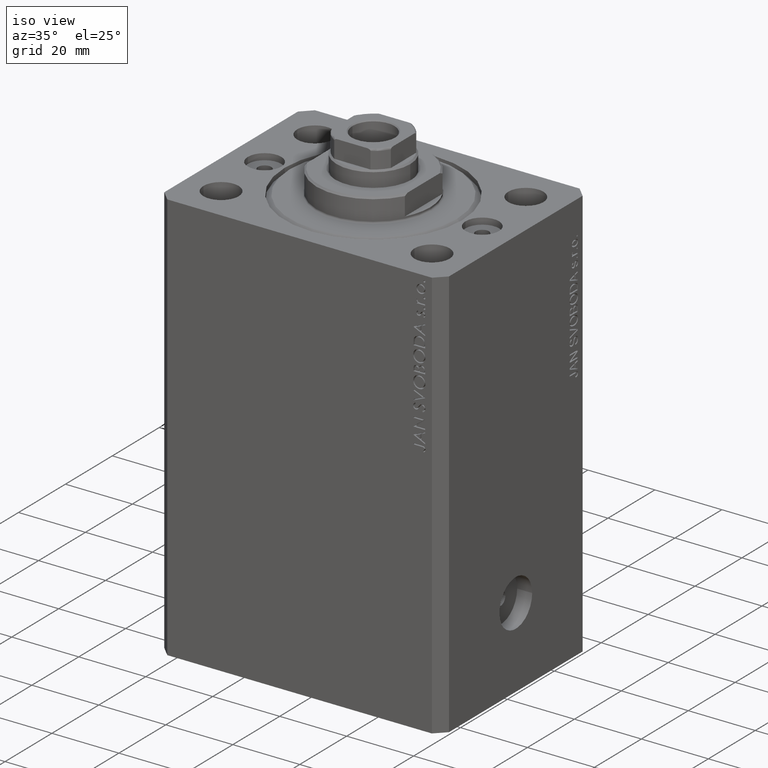
[diagram: clean part render]
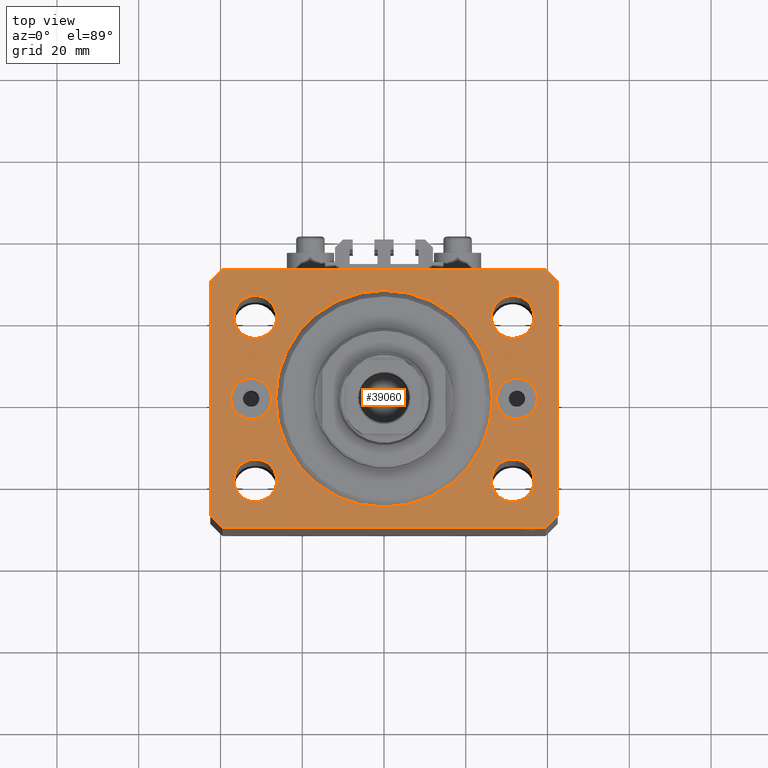
[diagram: tour spotlight — one face highlighted and labeled with its STEP entity id]
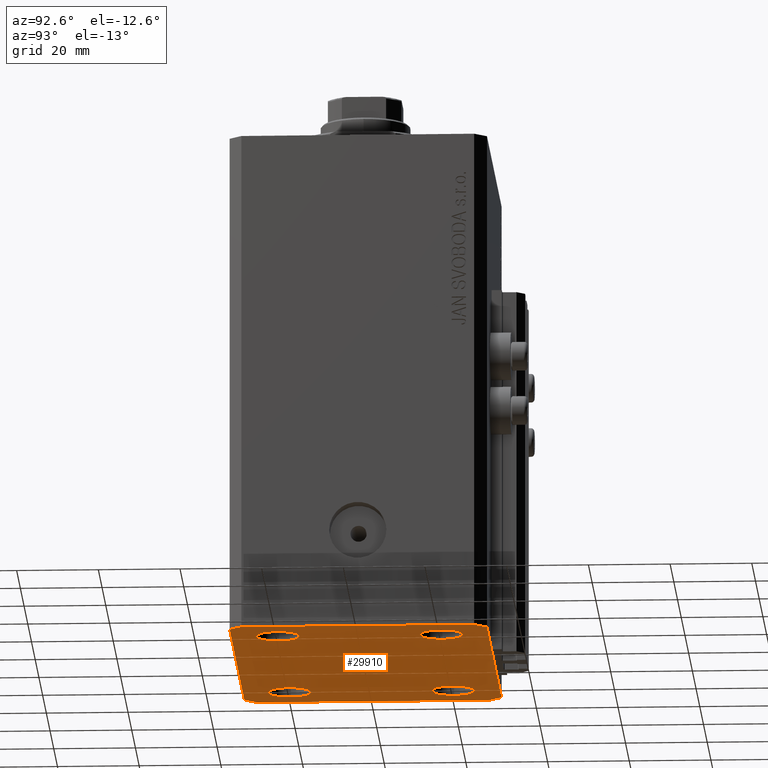
[diagram: tour spotlight — one face highlighted and labeled with its STEP entity id]
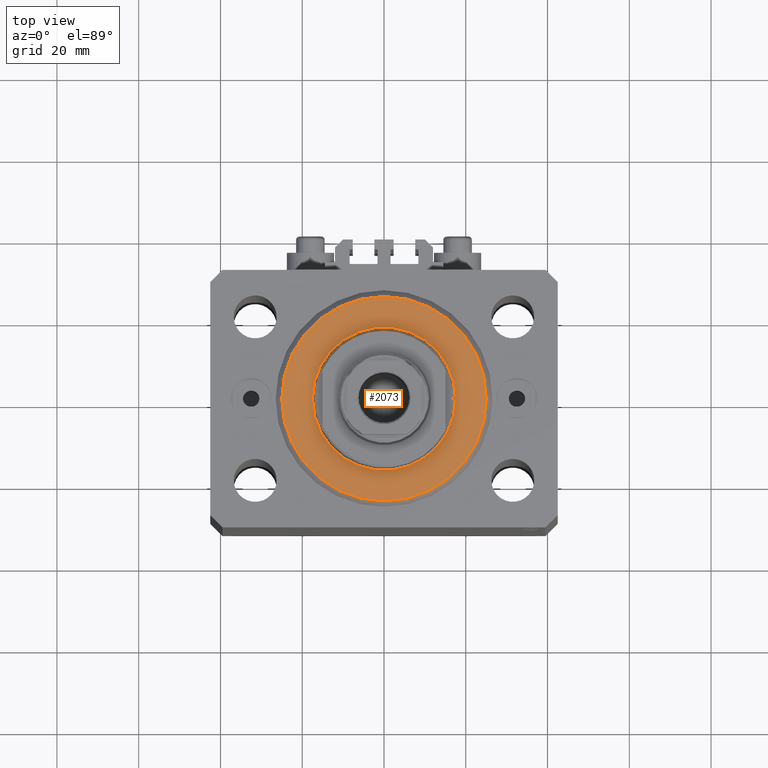
[diagram: tour spotlight — one face highlighted and labeled with its STEP entity id]
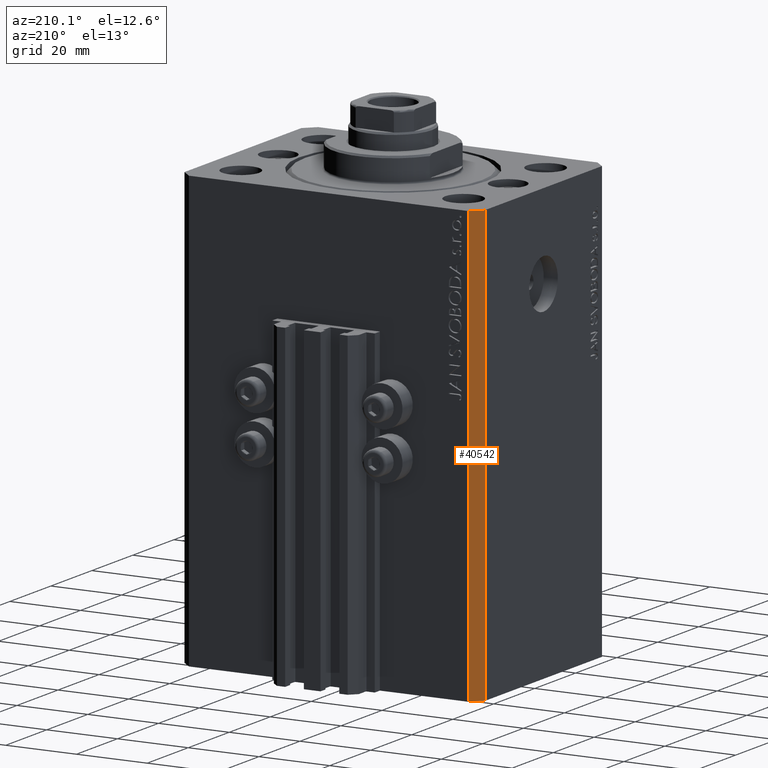
[diagram: tour spotlight — one face highlighted and labeled with its STEP entity id]
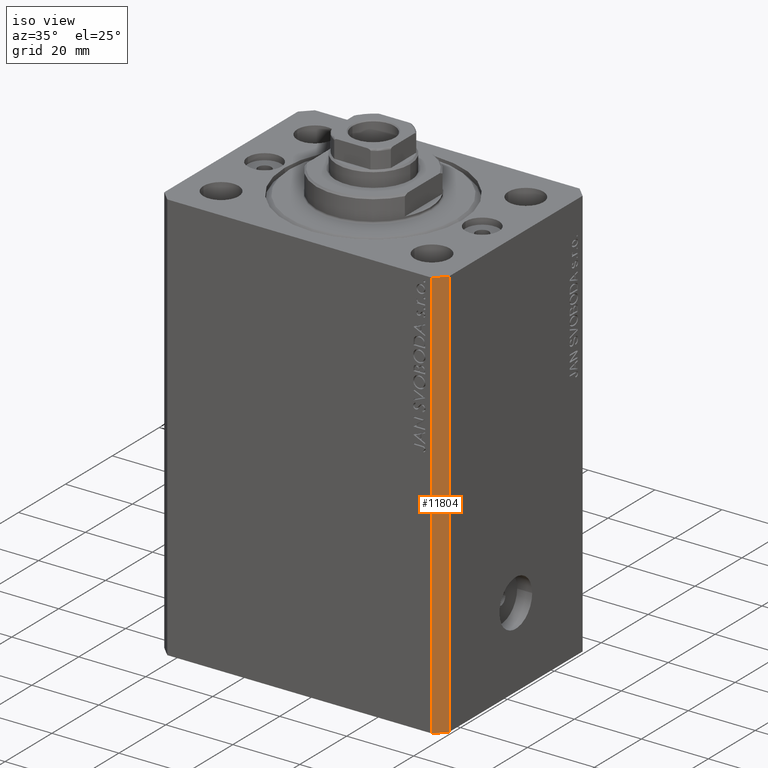
[diagram: tour spotlight — one face highlighted and labeled with its STEP entity id]
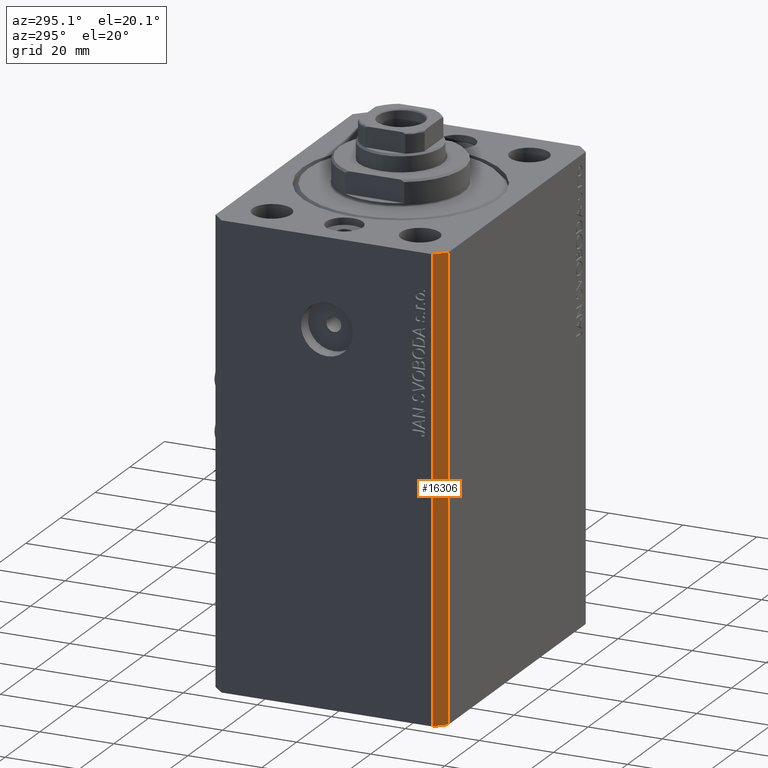
[diagram: tour spotlight — one face highlighted and labeled with its STEP entity id]
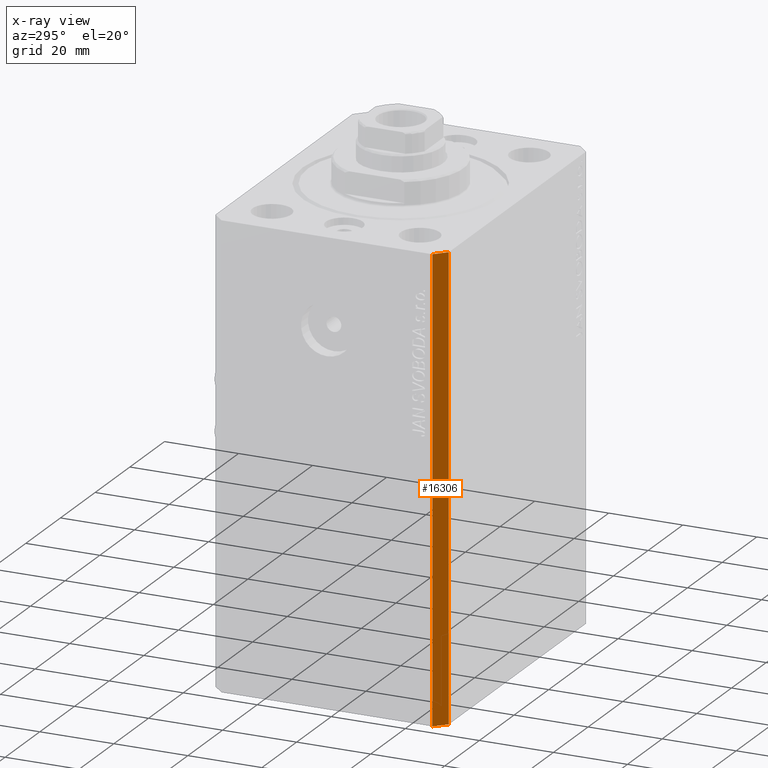
[diagram: x-ray of the same camera — body ghosted, this tour face saturated]
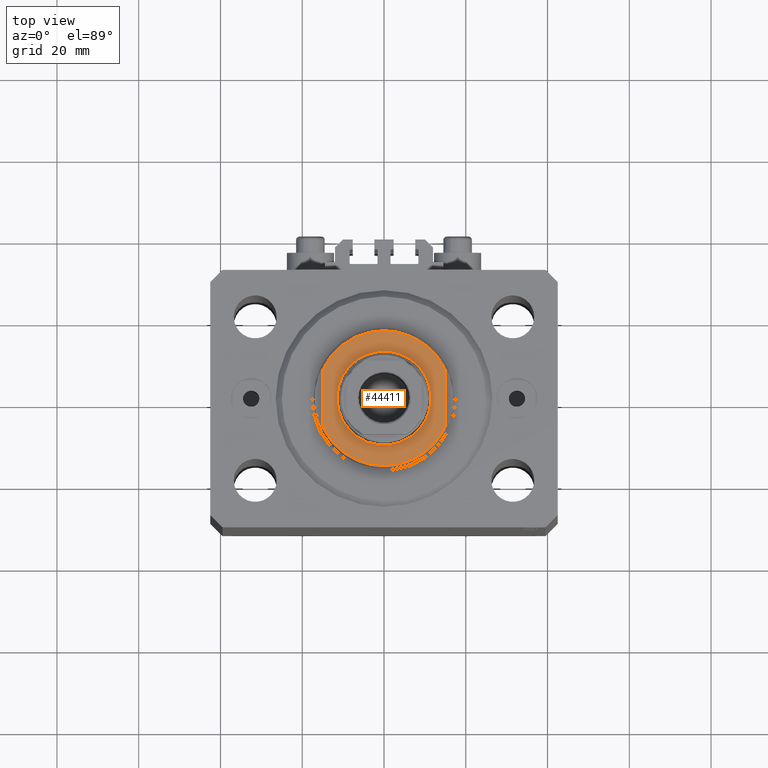
[diagram: tour spotlight — one face highlighted and labeled with its STEP entity id]
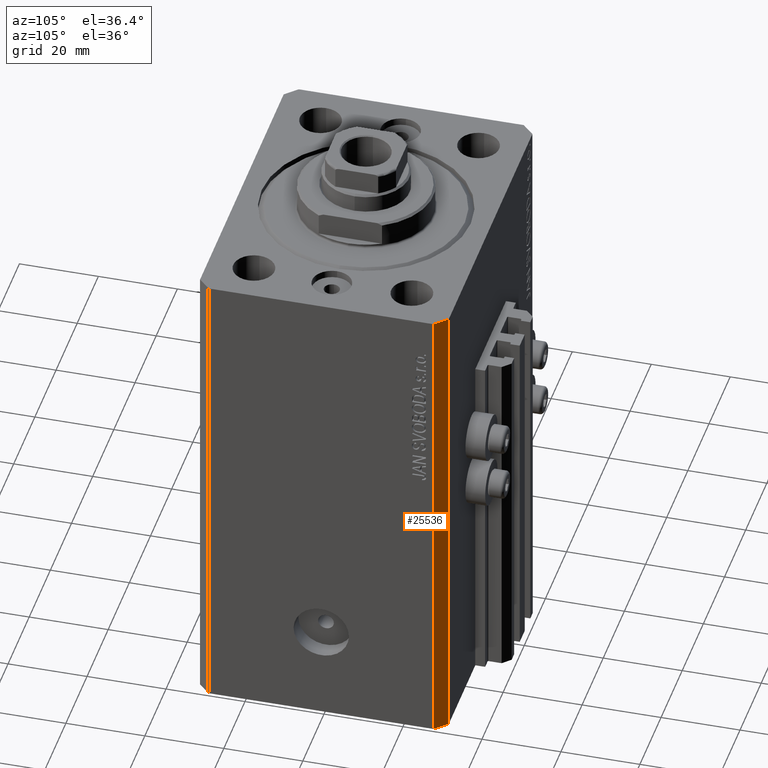
[diagram: tour spotlight — one face highlighted and labeled with its STEP entity id]
A machine part: a face-by-face anatomy tour. The part has 1034 B-rep faces; the first image is the clean iso view, then the 8 largest visible faces are spotlighted one at a time (largest first), each with its STEP entity span.

Face 1 — top view, entity #39060. In plain terms, the highlighted planar face has unit normal (0, 0, 1).
Definition (entity closure, byte-faithful):
#320 = FACE_BOUND ( 'NONE', #38088, .T. ) ;
#492 = DIRECTION ( 'NONE',  ( 0.000000000000000000, 0.000000000000000000, 1.000000000000000000 ) ) ;
#544 = CIRCLE ( 'NONE', #4364, 5.250000000000000888 ) ;
#616 = AXIS2_PLACEMENT_3D ( 'NONE', #32917, #46763, #10721 ) ;
#768 = ORIENTED_EDGE ( 'NONE', *, *, #45576, .F. ) ;
#1257 = LINE ( 'NONE', #33502, #16091 ) ;
#1349 = ORIENTED_EDGE ( 'NONE', *, *, #29163, .F. ) ;
#1533 = EDGE_CURVE ( 'NONE', #11230, #44700, #39549, .T. ) ;
#1689 = AXIS2_PLACEMENT_3D ( 'NONE', #26861, #9167, #20143 ) ;
#2320 = DIRECTION ( 'NONE',  ( 1.000000000000000000, 0.000000000000000000, 0.000000000000000000 ) ) ;
#2608 = CARTESIAN_POINT ( 'NONE',  ( 36.75000000000000000, 19.99999999999999289, 0.000000000000000000 ) ) ;
#2631 = VERTEX_POINT ( 'NONE', #34770 ) ;
#3050 = ORIENTED_EDGE ( 'NONE', *, *, #7597, .F. ) ;
#3194 = PLANE ( 'NONE',  #29833 ) ;
#3853 = DIRECTION ( 'NONE',  ( 1.000000000000000000, 0.000000000000000000, 0.000000000000000000 ) ) ;
#3963 = CARTESIAN_POINT ( 'NONE',  ( -31.49999999999999289, -20.00000000000000355, 0.000000000000000000 ) ) ;
#4119 = VERTEX_POINT ( 'NONE', #32526 ) ;
#4364 = AXIS2_PLACEMENT_3D ( 'NONE', #30347, #40866, #23177 ) ;
#4549 = DIRECTION ( 'NONE',  ( 0.000000000000000000, -0.000000000000000000, -1.000000000000000000 ) ) ;
#4561 = DIRECTION ( 'NONE',  ( 0.000000000000000000, 0.000000000000000000, 1.000000000000000000 ) ) ;
#4680 = EDGE_CURVE ( 'NONE', #17376, #24225, #30666, .T. ) ;
#4955 = CARTESIAN_POINT ( 'NONE',  ( -26.50000000000000355, 3.245314017740486554E-15, 0.000000000000000000 ) ) ;
#5402 = AXIS2_PLACEMENT_3D ( 'NONE', #33445, #4549, #3853 ) ;
#5435 = ORIENTED_EDGE ( 'NONE', *, *, #39119, .T. ) ;
#5450 = CARTESIAN_POINT ( 'NONE',  ( -26.24999999999999289, -20.00000000000000355, 0.000000000000000000 ) ) ;
#5735 = VECTOR ( 'NONE', #37131, 1000.000000000000000 ) ;
#5882 = CARTESIAN_POINT ( 'NONE',  ( -39.50000000000000711, -31.50000000000000000, 0.000000000000000000 ) ) ;
#5899 = DIRECTION ( 'NONE',  ( 0.000000000000000000, -0.000000000000000000, -1.000000000000000000 ) ) ;
#6372 = ORIENTED_EDGE ( 'NONE', *, *, #25056, .F. ) ;
#6502 = VECTOR ( 'NONE', #12837, 1000.000000000000000 ) ;
#6548 = DIRECTION ( 'NONE',  ( 0.000000000000000000, -1.000000000000000000, 0.000000000000000000 ) ) ;
#7340 = CIRCLE ( 'NONE', #27163, 5.249999999999997335 ) ;
#7597 = EDGE_CURVE ( 'NONE', #30133, #4119, #15321, .T. ) ;
#7707 = CARTESIAN_POINT ( 'NONE',  ( 27.50000000000000355, 6.123233995736762338E-16, 0.000000000000000000 ) ) ;
#8119 = VERTEX_POINT ( 'NONE', #9932 ) ;
#8397 = DIRECTION ( 'NONE',  ( 1.000000000000000000, 0.000000000000000000, 0.000000000000000000 ) ) ;
#8476 = DIRECTION ( 'NONE',  ( 0.000000000000000000, 0.000000000000000000, 1.000000000000000000 ) ) ;
#8890 = AXIS2_PLACEMENT_3D ( 'NONE', #46009, #5899, #2320 ) ;
#8935 = DIRECTION ( 'NONE',  ( -0.7071067811865471286, -0.7071067811865479058, 0.000000000000000000 ) ) ;
#9167 = DIRECTION ( 'NONE',  ( 0.000000000000000000, 0.000000000000000000, 1.000000000000000000 ) ) ;
#9320 = CIRCLE ( 'NONE', #16188, 5.250000000000000888 ) ;
#9932 = CARTESIAN_POINT ( 'NONE',  ( -39.50000000000000711, -31.50000000000000000, 0.000000000000000000 ) ) ;
#9972 = VERTEX_POINT ( 'NONE', #13715 ) ;
#9998 = LINE ( 'NONE', #36267, #25668 ) ;
#10031 = EDGE_CURVE ( 'NONE', #24225, #31808, #25185, .T. ) ;
#10114 = FACE_OUTER_BOUND ( 'NONE', #44625, .T. ) ;
#10307 = CARTESIAN_POINT ( 'NONE',  ( -42.50000000000000000, -28.50000000000000000, 0.000000000000000000 ) ) ;
#10352 = CARTESIAN_POINT ( 'NONE',  ( 0.000000000000000000, 0.000000000000000000, 0.000000000000000000 ) ) ;
#10599 = DIRECTION ( 'NONE',  ( 1.000000000000000000, 0.000000000000000000, -0.000000000000000000 ) ) ;
#10721 = DIRECTION ( 'NONE',  ( 1.000000000000000000, 0.000000000000000000, 0.000000000000000000 ) ) ;
#10752 = VERTEX_POINT ( 'NONE', #17616 ) ;
#10865 = ORIENTED_EDGE ( 'NONE', *, *, #11134, .F. ) ;
#10981 = CARTESIAN_POINT ( 'NONE',  ( 37.50000000000000000, 0.000000000000000000, 0.000000000000000000 ) ) ;
#10985 = ORIENTED_EDGE ( 'NONE', *, *, #22318, .T. ) ;
#11120 = AXIS2_PLACEMENT_3D ( 'NONE', #32044, #29416, #21793 ) ;
#11134 = EDGE_CURVE ( 'NONE', #10752, #12616, #46647, .T. ) ;
#11182 = CARTESIAN_POINT ( 'NONE',  ( 39.50000000000000711, -31.50000000000000000, 0.000000000000000000 ) ) ;
#11191 = VECTOR ( 'NONE', #19688, 1000.000000000000000 ) ;
#11212 = ORIENTED_EDGE ( 'NONE', *, *, #10031, .T. ) ;
#11230 = VERTEX_POINT ( 'NONE', #22335 ) ;
#11817 = LINE ( 'NONE', #26849, #5735 ) ;
#12080 = CIRCLE ( 'NONE', #46339, 5.249999999999997335 ) ;
#12274 = AXIS2_PLACEMENT_3D ( 'NONE', #33440, #492, #22928 ) ;
#12462 = VERTEX_POINT ( 'NONE', #7707 ) ;
#12464 = DIRECTION ( 'NONE',  ( 0.000000000000000000, 0.000000000000000000, 1.000000000000000000 ) ) ;
#12609 = VERTEX_POINT ( 'NONE', #10981 ) ;
#12616 = VERTEX_POINT ( 'NONE', #2608 ) ;
#12837 = DIRECTION ( 'NONE',  ( 1.000000000000000000, 0.000000000000000000, 0.000000000000000000 ) ) ;
#13715 = CARTESIAN_POINT ( 'NONE',  ( 42.50000000000051870, 28.49999999999995381, 0.000000000000000000 ) ) ;
#13867 = CARTESIAN_POINT ( 'NONE',  ( -42.50000000000000000, 28.50000000000000000, 0.000000000000000000 ) ) ;
#13971 = ORIENTED_EDGE ( 'NONE', *, *, #44407, .T. ) ;
#14632 = ORIENTED_EDGE ( 'NONE', *, *, #45518, .F. ) ;
#14892 = FACE_BOUND ( 'NONE', #34574, .T. ) ;
#15321 = CIRCLE ( 'NONE', #12274, 26.50000000000000355 ) ;
#15575 = CARTESIAN_POINT ( 'NONE',  ( -32.50000000000000000, 0.000000000000000000, 0.000000000000000000 ) ) ;
#15902 = EDGE_CURVE ( 'NONE', #35502, #27976, #9320, .T. ) ;
#15987 = EDGE_CURVE ( 'NONE', #4119, #30133, #42860, .T. ) ;
#16091 = VECTOR ( 'NONE', #22990, 1000.000000000000000 ) ;
#16188 = AXIS2_PLACEMENT_3D ( 'NONE', #3963, #8476, #23040 ) ;
#17272 = CIRCLE ( 'NONE', #8890, 4.999999999999997335 ) ;
#17376 = VERTEX_POINT ( 'NONE', #46772 ) ;
#17519 = DIRECTION ( 'NONE',  ( 0.000000000000000000, 0.000000000000000000, 1.000000000000000000 ) ) ;
#17616 = CARTESIAN_POINT ( 'NONE',  ( 26.25000000000000355, 19.99999999999999289, 0.000000000000000000 ) ) ;
#18007 = AXIS2_PLACEMENT_3D ( 'NONE', #36964, #36504, #21943 ) ;
#18115 = CARTESIAN_POINT ( 'NONE',  ( 42.50000000000000711, -28.50000000000000355, 0.000000000000000000 ) ) ;
#18346 = ORIENTED_EDGE ( 'NONE', *, *, #31962, .T. ) ;
#18855 = VERTEX_POINT ( 'NONE', #35417 ) ;
#19132 = DIRECTION ( 'NONE',  ( 1.000000000000000000, 0.000000000000000000, 0.000000000000000000 ) ) ;
#19189 = CARTESIAN_POINT ( 'NONE',  ( -26.25000000000000000, 19.99999999999999645, 0.000000000000000000 ) ) ;
#19476 = ORIENTED_EDGE ( 'NONE', *, *, #25921, .T. ) ;
#19688 = DIRECTION ( 'NONE',  ( 0.7071067811865471286, -0.7071067811865479058, 0.000000000000000000 ) ) ;
#20143 = DIRECTION ( 'NONE',  ( 1.000000000000000000, 0.000000000000000000, 0.000000000000000000 ) ) ;
#20474 = AXIS2_PLACEMENT_3D ( 'NONE', #15575, #41117, #8397 ) ;
#21124 = DIRECTION ( 'NONE',  ( 0.000000000000000000, 0.000000000000000000, 1.000000000000000000 ) ) ;
#21468 = DIRECTION ( 'NONE',  ( -0.7071067811865356934, 0.7071067811865594521, 0.000000000000000000 ) ) ;
#21793 = DIRECTION ( 'NONE',  ( 1.000000000000000000, 0.000000000000000000, 0.000000000000000000 ) ) ;
#21864 = VERTEX_POINT ( 'NONE', #11182 ) ;
#21943 = DIRECTION ( 'NONE',  ( 1.000000000000000000, 0.000000000000000000, 0.000000000000000000 ) ) ;
#22318 = EDGE_CURVE ( 'NONE', #31808, #8119, #31362, .T. ) ;
#22335 = CARTESIAN_POINT ( 'NONE',  ( -37.50000000000000000, 6.123233995736768255E-16, 0.000000000000000000 ) ) ;
#22717 = CARTESIAN_POINT ( 'NONE',  ( 31.49999999999999289, -20.00000000000000355, 0.000000000000000000 ) ) ;
#22928 = DIRECTION ( 'NONE',  ( 1.000000000000000000, 0.000000000000000000, 0.000000000000000000 ) ) ;
#22990 = DIRECTION ( 'NONE',  ( -1.000000000000000000, 0.000000000000000000, 0.000000000000000000 ) ) ;
#23040 = DIRECTION ( 'NONE',  ( 1.000000000000000000, 0.000000000000000000, 0.000000000000000000 ) ) ;
#23154 = EDGE_CURVE ( 'NONE', #18855, #31517, #29418, .T. ) ;
#23177 = DIRECTION ( 'NONE',  ( 1.000000000000000000, 0.000000000000000000, 0.000000000000000000 ) ) ;
#23403 = DIRECTION ( 'NONE',  ( 8.886653596232072440E-15, 1.000000000000000000, 0.000000000000000000 ) ) ;
#23426 = CARTESIAN_POINT ( 'NONE',  ( 39.50000000000056843, 31.50000000000000000, 0.000000000000000000 ) ) ;
#23720 = EDGE_CURVE ( 'NONE', #21864, #24584, #11817, .T. ) ;
#23996 = ORIENTED_EDGE ( 'NONE', *, *, #23154, .F. ) ;
#24090 = DIRECTION ( 'NONE',  ( 1.000000000000000000, 0.000000000000000000, 0.000000000000000000 ) ) ;
#24225 = VERTEX_POINT ( 'NONE', #13867 ) ;
#24464 = DIRECTION ( 'NONE',  ( 1.000000000000000000, 0.000000000000000000, 0.000000000000000000 ) ) ;
#24584 = VERTEX_POINT ( 'NONE', #18115 ) ;
#24673 = FACE_BOUND ( 'NONE', #37695, .T. ) ;
#24867 = CIRCLE ( 'NONE', #18007, 5.250000000000000888 ) ;
#25056 = EDGE_CURVE ( 'NONE', #43396, #2631, #7340, .T. ) ;
#25185 = LINE ( 'NONE', #27799, #27561 ) ;
#25668 = VECTOR ( 'NONE', #21468, 1000.000000000000114 ) ;
#25921 = EDGE_CURVE ( 'NONE', #12609, #12462, #17272, .T. ) ;
#26422 = VERTEX_POINT ( 'NONE', #23426 ) ;
#26627 = CARTESIAN_POINT ( 'NONE',  ( -39.50000000000000711, 31.50000000000000000, 0.000000000000000000 ) ) ;
#26849 = CARTESIAN_POINT ( 'NONE',  ( 39.50000000000000711, -31.50000000000000000, 0.000000000000000000 ) ) ;
#26861 = CARTESIAN_POINT ( 'NONE',  ( 0.000000000000000000, 0.000000000000000000, 0.000000000000000000 ) ) ;
#27163 = AXIS2_PLACEMENT_3D ( 'NONE', #29911, #12464, #37316 ) ;
#27561 = VECTOR ( 'NONE', #6548, 1000.000000000000000 ) ;
#27799 = CARTESIAN_POINT ( 'NONE',  ( -42.50000000000000000, 28.50000000000000000, 0.000000000000000000 ) ) ;
#27976 = VERTEX_POINT ( 'NONE', #43587 ) ;
#28283 = ORIENTED_EDGE ( 'NONE', *, *, #4680, .T. ) ;
#28739 = FACE_BOUND ( 'NONE', #35497, .T. ) ;
#29068 = EDGE_LOOP ( 'NONE', ( #6372, #768 ) ) ;
#29163 = EDGE_CURVE ( 'NONE', #44700, #11230, #41786, .T. ) ;
#29416 = DIRECTION ( 'NONE',  ( 0.000000000000000000, 0.000000000000000000, 1.000000000000000000 ) ) ;
#29418 = CIRCLE ( 'NONE', #11120, 5.250000000000000888 ) ;
#29833 = AXIS2_PLACEMENT_3D ( 'NONE', #10352, #17519, #10599 ) ;
#29911 = CARTESIAN_POINT ( 'NONE',  ( 31.49999999999999289, -20.00000000000000355, 0.000000000000000000 ) ) ;
#30133 = VERTEX_POINT ( 'NONE', #4955 ) ;
#30319 = EDGE_CURVE ( 'NONE', #8119, #21864, #34780, .T. ) ;
#30347 = CARTESIAN_POINT ( 'NONE',  ( -31.50000000000000000, 19.99999999999999645, 0.000000000000000000 ) ) ;
#30666 = LINE ( 'NONE', #26627, #43460 ) ;
#30761 = ORIENTED_EDGE ( 'NONE', *, *, #1533, .F. ) ;
#30789 = CARTESIAN_POINT ( 'NONE',  ( 31.50000000000000000, 19.99999999999999289, 0.000000000000000000 ) ) ;
#31362 = LINE ( 'NONE', #38073, #11191 ) ;
#31517 = VERTEX_POINT ( 'NONE', #19189 ) ;
#31780 = AXIS2_PLACEMENT_3D ( 'NONE', #22717, #4561, #19132 ) ;
#31808 = VERTEX_POINT ( 'NONE', #10307 ) ;
#31962 = EDGE_CURVE ( 'NONE', #24584, #9972, #38904, .T. ) ;
#32044 = CARTESIAN_POINT ( 'NONE',  ( -31.50000000000000000, 19.99999999999999645, 0.000000000000000000 ) ) ;
#32231 = ORIENTED_EDGE ( 'NONE', *, *, #23720, .T. ) ;
#32351 = ORIENTED_EDGE ( 'NONE', *, *, #40851, .F. ) ;
#32526 = CARTESIAN_POINT ( 'NONE',  ( 26.50000000000000355, 0.000000000000000000, 0.000000000000000000 ) ) ;
#32917 = CARTESIAN_POINT ( 'NONE',  ( -32.50000000000000000, 0.000000000000000000, 0.000000000000000000 ) ) ;
#33440 = CARTESIAN_POINT ( 'NONE',  ( 0.000000000000000000, 0.000000000000000000, 0.000000000000000000 ) ) ;
#33445 = CARTESIAN_POINT ( 'NONE',  ( 32.50000000000000000, 0.000000000000000000, 0.000000000000000000 ) ) ;
#33502 = CARTESIAN_POINT ( 'NONE',  ( 39.50000000000056843, 31.50000000000000000, 0.000000000000000000 ) ) ;
#34574 = EDGE_LOOP ( 'NONE', ( #32351, #10865 ) ) ;
#34770 = CARTESIAN_POINT ( 'NONE',  ( 26.24999999999999645, -20.00000000000000355, 0.000000000000000000 ) ) ;
#34780 = LINE ( 'NONE', #5882, #6502 ) ;
#35417 = CARTESIAN_POINT ( 'NONE',  ( -36.75000000000000000, 19.99999999999999645, 0.000000000000000000 ) ) ;
#35497 = EDGE_LOOP ( 'NONE', ( #19476, #40590 ) ) ;
#35502 = VERTEX_POINT ( 'NONE', #5450 ) ;
#35598 = CIRCLE ( 'NONE', #31780, 5.249999999999997335 ) ;
#35901 = FACE_BOUND ( 'NONE', #29068, .T. ) ;
#36267 = CARTESIAN_POINT ( 'NONE',  ( 42.50000000000051870, 28.49999999999995381, 0.000000000000000000 ) ) ;
#36504 = DIRECTION ( 'NONE',  ( 0.000000000000000000, 0.000000000000000000, 1.000000000000000000 ) ) ;
#36964 = CARTESIAN_POINT ( 'NONE',  ( -31.49999999999999289, -20.00000000000000355, 0.000000000000000000 ) ) ;
#37102 = VECTOR ( 'NONE', #23403, 1000.000000000000000 ) ;
#37131 = DIRECTION ( 'NONE',  ( 0.7071067811865483499, 0.7071067811865466846, 0.000000000000000000 ) ) ;
#37234 = ORIENTED_EDGE ( 'NONE', *, *, #15987, .F. ) ;
#37316 = DIRECTION ( 'NONE',  ( 1.000000000000000000, 0.000000000000000000, 0.000000000000000000 ) ) ;
#37695 = EDGE_LOOP ( 'NONE', ( #37234, #3050 ) ) ;
#37699 = ORIENTED_EDGE ( 'NONE', *, *, #15902, .F. ) ;
#38073 = CARTESIAN_POINT ( 'NONE',  ( -42.50000000000000000, -28.50000000000000000, 0.000000000000000000 ) ) ;
#38088 = EDGE_LOOP ( 'NONE', ( #14632, #23996 ) ) ;
#38370 = CARTESIAN_POINT ( 'NONE',  ( -27.50000000000000000, 0.000000000000000000, 0.000000000000000000 ) ) ;
#38904 = LINE ( 'NONE', #45819, #37102 ) ;
#38950 = CIRCLE ( 'NONE', #5402, 4.999999999999997335 ) ;
#39060 = ADVANCED_FACE ( 'NONE', ( #10114, #320, #14892, #35901, #42818, #24673, #43054, #28739 ), #3194, .T. ) ;
#39119 = EDGE_CURVE ( 'NONE', #26422, #17376, #1257, .T. ) ;
#39348 = EDGE_LOOP ( 'NONE', ( #1349, #30761 ) ) ;
#39510 = EDGE_CURVE ( 'NONE', #12462, #12609, #38950, .T. ) ;
#39549 = CIRCLE ( 'NONE', #20474, 5.000000000000000888 ) ;
#40000 = EDGE_LOOP ( 'NONE', ( #37699, #42145 ) ) ;
#40590 = ORIENTED_EDGE ( 'NONE', *, *, #39510, .T. ) ;
#40851 = EDGE_CURVE ( 'NONE', #12616, #10752, #12080, .T. ) ;
#40866 = DIRECTION ( 'NONE',  ( 0.000000000000000000, 0.000000000000000000, 1.000000000000000000 ) ) ;
#41117 = DIRECTION ( 'NONE',  ( 0.000000000000000000, 0.000000000000000000, 1.000000000000000000 ) ) ;
#41355 = AXIS2_PLACEMENT_3D ( 'NONE', #43084, #21124, #24464 ) ;
#41786 = CIRCLE ( 'NONE', #616, 5.000000000000000888 ) ;
#42145 = ORIENTED_EDGE ( 'NONE', *, *, #43710, .F. ) ;
#42818 = FACE_BOUND ( 'NONE', #40000, .T. ) ;
#42860 = CIRCLE ( 'NONE', #1689, 26.50000000000000355 ) ;
#43054 = FACE_BOUND ( 'NONE', #39348, .T. ) ;
#43084 = CARTESIAN_POINT ( 'NONE',  ( 31.50000000000000000, 19.99999999999999289, 0.000000000000000000 ) ) ;
#43396 = VERTEX_POINT ( 'NONE', #46569 ) ;
#43460 = VECTOR ( 'NONE', #8935, 1000.000000000000000 ) ;
#43587 = CARTESIAN_POINT ( 'NONE',  ( -36.74999999999999289, -20.00000000000000355, 0.000000000000000000 ) ) ;
#43710 = EDGE_CURVE ( 'NONE', #27976, #35502, #24867, .T. ) ;
#44407 = EDGE_CURVE ( 'NONE', #9972, #26422, #9998, .T. ) ;
#44625 = EDGE_LOOP ( 'NONE', ( #5435, #28283, #11212, #10985, #45382, #32231, #18346, #13971 ) ) ;
#44700 = VERTEX_POINT ( 'NONE', #38370 ) ;
#45382 = ORIENTED_EDGE ( 'NONE', *, *, #30319, .T. ) ;
#45518 = EDGE_CURVE ( 'NONE', #31517, #18855, #544, .T. ) ;
#45576 = EDGE_CURVE ( 'NONE', #2631, #43396, #35598, .T. ) ;
#45819 = CARTESIAN_POINT ( 'NONE',  ( 42.50000000000000711, -28.50000000000000355, 0.000000000000000000 ) ) ;
#46009 = CARTESIAN_POINT ( 'NONE',  ( 32.50000000000000000, 0.000000000000000000, 0.000000000000000000 ) ) ;
#46044 = DIRECTION ( 'NONE',  ( 0.000000000000000000, 0.000000000000000000, 1.000000000000000000 ) ) ;
#46339 = AXIS2_PLACEMENT_3D ( 'NONE', #30789, #46044, #24090 ) ;
#46569 = CARTESIAN_POINT ( 'NONE',  ( 36.74999999999999289, -20.00000000000000355, 0.000000000000000000 ) ) ;
#46647 = CIRCLE ( 'NONE', #41355, 5.249999999999997335 ) ;
#46763 = DIRECTION ( 'NONE',  ( 0.000000000000000000, 0.000000000000000000, 1.000000000000000000 ) ) ;
#46772 = CARTESIAN_POINT ( 'NONE',  ( -39.50000000000000711, 31.50000000000000000, 0.000000000000000000 ) ) ;

Face 2 — auxiliary view, entity #29910. In plain terms, the highlighted planar face has unit normal (0, 0, 1).
Definition (entity closure, byte-faithful):
#236 = ORIENTED_EDGE ( 'NONE', *, *, #34738, .F. ) ;
#580 = CIRCLE ( 'NONE', #22705, 5.250000000000000888 ) ;
#807 = DIRECTION ( 'NONE',  ( -0.000000000000000000, -0.000000000000000000, -1.000000000000000000 ) ) ;
#1400 = VERTEX_POINT ( 'NONE', #20583 ) ;
#1632 = ORIENTED_EDGE ( 'NONE', *, *, #21440, .F. ) ;
#1667 = FACE_BOUND ( 'NONE', #5160, .T. ) ;
#2102 = ORIENTED_EDGE ( 'NONE', *, *, #30672, .F. ) ;
#2237 = DIRECTION ( 'NONE',  ( 1.000000000000000000, 0.000000000000000000, 0.000000000000000000 ) ) ;
#2406 = AXIS2_PLACEMENT_3D ( 'NONE', #37899, #5177, #2237 ) ;
#2607 = VERTEX_POINT ( 'NONE', #29572 ) ;
#2971 = CARTESIAN_POINT ( 'NONE',  ( -31.49999999999999289, -20.00000000000000355, -123.0000000000000000 ) ) ;
#3089 = CARTESIAN_POINT ( 'NONE',  ( 36.74999999999999289, -20.00000000000000355, -123.0000000000000000 ) ) ;
#3522 = EDGE_LOOP ( 'NONE', ( #17020, #18786 ) ) ;
#3813 = CARTESIAN_POINT ( 'NONE',  ( -39.50000000000000711, -31.50000000000000000, -123.0000000000000000 ) ) ;
#4277 = DIRECTION ( 'NONE',  ( 1.000000000000000000, 0.000000000000000000, 0.000000000000000000 ) ) ;
#4414 = CARTESIAN_POINT ( 'NONE',  ( 39.50000000000000711, -31.50000000000000000, -123.0000000000000000 ) ) ;
#4903 = CARTESIAN_POINT ( 'NONE',  ( -39.50000000000000711, 31.50000000000000000, -123.0000000000000000 ) ) ;
#5160 = EDGE_LOOP ( 'NONE', ( #32873, #2102 ) ) ;
#5177 = DIRECTION ( 'NONE',  ( -0.000000000000000000, -0.000000000000000000, -1.000000000000000000 ) ) ;
#5403 = VECTOR ( 'NONE', #4277, 1000.000000000000000 ) ;
#5540 = CARTESIAN_POINT ( 'NONE',  ( -42.50000000000000000, -28.50000000000000000, -123.0000000000000000 ) ) ;
#5762 = EDGE_CURVE ( 'NONE', #6802, #32051, #25947, .T. ) ;
#5862 = CIRCLE ( 'NONE', #39469, 5.249999999999997335 ) ;
#6079 = CARTESIAN_POINT ( 'NONE',  ( 42.50000000000051870, 28.49999999999995381, -123.0000000000000000 ) ) ;
#6802 = VERTEX_POINT ( 'NONE', #38208 ) ;
#7609 = CARTESIAN_POINT ( 'NONE',  ( -36.75000000000000000, 19.99999999999999645, -123.0000000000000000 ) ) ;
#7699 = LINE ( 'NONE', #26314, #17703 ) ;
#7935 = DIRECTION ( 'NONE',  ( -0.7071067811865471286, -0.7071067811865479058, 0.000000000000000000 ) ) ;
#8025 = CIRCLE ( 'NONE', #18704, 5.250000000000000888 ) ;
#8831 = FACE_BOUND ( 'NONE', #37653, .T. ) ;
#9270 = EDGE_LOOP ( 'NONE', ( #30315, #31998 ) ) ;
#9346 = EDGE_CURVE ( 'NONE', #12317, #23729, #26476, .T. ) ;
#9402 = CARTESIAN_POINT ( 'NONE',  ( 31.49999999999999289, -20.00000000000000355, -123.0000000000000000 ) ) ;
#9968 = VERTEX_POINT ( 'NONE', #17542 ) ;
#10364 = CIRCLE ( 'NONE', #37066, 5.250000000000000888 ) ;
#11088 = AXIS2_PLACEMENT_3D ( 'NONE', #34151, #41095, #16240 ) ;
#11236 = DIRECTION ( 'NONE',  ( -0.000000000000000000, -0.000000000000000000, -1.000000000000000000 ) ) ;
#11559 = EDGE_CURVE ( 'NONE', #42507, #35198, #7699, .T. ) ;
#11770 = CARTESIAN_POINT ( 'NONE',  ( -31.49999999999999289, -20.00000000000000355, -123.0000000000000000 ) ) ;
#11780 = CIRCLE ( 'NONE', #43047, 5.249999999999997335 ) ;
#11868 = VERTEX_POINT ( 'NONE', #6079 ) ;
#12317 = VERTEX_POINT ( 'NONE', #31111 ) ;
#12399 = VERTEX_POINT ( 'NONE', #46857 ) ;
#12569 = VERTEX_POINT ( 'NONE', #25308 ) ;
#12607 = ORIENTED_EDGE ( 'NONE', *, *, #36218, .F. ) ;
#12980 = CIRCLE ( 'NONE', #20597, 5.249999999999997335 ) ;
#13160 = DIRECTION ( 'NONE',  ( 1.000000000000000000, 0.000000000000000000, 0.000000000000000000 ) ) ;
#13198 = CARTESIAN_POINT ( 'NONE',  ( 39.50000000000056843, 31.50000000000000000, -123.0000000000000000 ) ) ;
#14059 = EDGE_CURVE ( 'NONE', #23729, #12399, #30168, .T. ) ;
#14495 = DIRECTION ( 'NONE',  ( 1.000000000000000000, 0.000000000000000000, 0.000000000000000000 ) ) ;
#15049 = VECTOR ( 'NONE', #21045, 1000.000000000000000 ) ;
#15388 = CARTESIAN_POINT ( 'NONE',  ( 39.50000000000000711, -31.50000000000000000, -123.0000000000000000 ) ) ;
#15746 = VERTEX_POINT ( 'NONE', #28547 ) ;
#16011 = FACE_OUTER_BOUND ( 'NONE', #35496, .T. ) ;
#16240 = DIRECTION ( 'NONE',  ( 1.000000000000000000, 0.000000000000000000, -0.000000000000000000 ) ) ;
#16680 = CARTESIAN_POINT ( 'NONE',  ( -42.50000000000000000, 28.50000000000000000, -123.0000000000000000 ) ) ;
#17020 = ORIENTED_EDGE ( 'NONE', *, *, #37320, .F. ) ;
#17228 = EDGE_CURVE ( 'NONE', #12399, #11868, #41092, .T. ) ;
#17542 = CARTESIAN_POINT ( 'NONE',  ( -42.50000000000000000, -28.50000000000000000, -123.0000000000000000 ) ) ;
#17679 = ORIENTED_EDGE ( 'NONE', *, *, #14059, .F. ) ;
#17703 = VECTOR ( 'NONE', #7935, 1000.000000000000000 ) ;
#17893 = EDGE_CURVE ( 'NONE', #32051, #6802, #11780, .T. ) ;
#18203 = DIRECTION ( 'NONE',  ( 8.886653596232072440E-15, 1.000000000000000000, 0.000000000000000000 ) ) ;
#18704 = AXIS2_PLACEMENT_3D ( 'NONE', #37349, #807, #14495 ) ;
#18786 = ORIENTED_EDGE ( 'NONE', *, *, #46199, .F. ) ;
#19355 = FACE_BOUND ( 'NONE', #9270, .T. ) ;
#19660 = EDGE_CURVE ( 'NONE', #22720, #40353, #8025, .T. ) ;
#19669 = LINE ( 'NONE', #13198, #35116 ) ;
#20583 = CARTESIAN_POINT ( 'NONE',  ( -26.24999999999999289, -20.00000000000000355, -123.0000000000000000 ) ) ;
#20586 = DIRECTION ( 'NONE',  ( -1.000000000000000000, 0.000000000000000000, 0.000000000000000000 ) ) ;
#20597 = AXIS2_PLACEMENT_3D ( 'NONE', #40611, #11236, #43705 ) ;
#21045 = DIRECTION ( 'NONE',  ( 0.7071067811865471286, -0.7071067811865479058, 0.000000000000000000 ) ) ;
#21440 = EDGE_CURVE ( 'NONE', #11868, #12569, #45627, .T. ) ;
#21835 = DIRECTION ( 'NONE',  ( 0.7071067811865483499, 0.7071067811865466846, 0.000000000000000000 ) ) ;
#21909 = VECTOR ( 'NONE', #30827, 1000.000000000000114 ) ;
#22705 = AXIS2_PLACEMENT_3D ( 'NONE', #11770, #30611, #40439 ) ;
#22720 = VERTEX_POINT ( 'NONE', #7609 ) ;
#23136 = ORIENTED_EDGE ( 'NONE', *, *, #9346, .F. ) ;
#23729 = VERTEX_POINT ( 'NONE', #4414 ) ;
#24132 = DIRECTION ( 'NONE',  ( -0.000000000000000000, -0.000000000000000000, -1.000000000000000000 ) ) ;
#25308 = CARTESIAN_POINT ( 'NONE',  ( 39.50000000000056843, 31.50000000000000000, -123.0000000000000000 ) ) ;
#25405 = DIRECTION ( 'NONE',  ( 1.000000000000000000, 0.000000000000000000, 0.000000000000000000 ) ) ;
#25637 = CARTESIAN_POINT ( 'NONE',  ( 31.49999999999999289, -20.00000000000000355, -123.0000000000000000 ) ) ;
#25947 = CIRCLE ( 'NONE', #27461, 5.249999999999997335 ) ;
#26314 = CARTESIAN_POINT ( 'NONE',  ( -39.50000000000000711, 31.50000000000000000, -123.0000000000000000 ) ) ;
#26476 = LINE ( 'NONE', #3813, #5403 ) ;
#26924 = CARTESIAN_POINT ( 'NONE',  ( -26.25000000000000000, 19.99999999999999645, -123.0000000000000000 ) ) ;
#27416 = ORIENTED_EDGE ( 'NONE', *, *, #45361, .F. ) ;
#27425 = LINE ( 'NONE', #16680, #29086 ) ;
#27461 = AXIS2_PLACEMENT_3D ( 'NONE', #25637, #44728, #25405 ) ;
#27647 = ORIENTED_EDGE ( 'NONE', *, *, #40320, .F. ) ;
#27656 = VECTOR ( 'NONE', #18203, 1000.000000000000000 ) ;
#28351 = VECTOR ( 'NONE', #21835, 1000.000000000000000 ) ;
#28547 = CARTESIAN_POINT ( 'NONE',  ( 26.25000000000000355, 19.99999999999999289, -123.0000000000000000 ) ) ;
#28825 = VERTEX_POINT ( 'NONE', #36799 ) ;
#29086 = VECTOR ( 'NONE', #44881, 1000.000000000000000 ) ;
#29572 = CARTESIAN_POINT ( 'NONE',  ( -36.74999999999999289, -20.00000000000000355, -123.0000000000000000 ) ) ;
#29910 = ADVANCED_FACE ( 'NONE', ( #1667, #19355, #34379, #8831, #16011 ), #33692, .F. ) ;
#30168 = LINE ( 'NONE', #15388, #28351 ) ;
#30315 = ORIENTED_EDGE ( 'NONE', *, *, #17893, .F. ) ;
#30611 = DIRECTION ( 'NONE',  ( -0.000000000000000000, -0.000000000000000000, -1.000000000000000000 ) ) ;
#30672 = EDGE_CURVE ( 'NONE', #2607, #1400, #10364, .T. ) ;
#30827 = DIRECTION ( 'NONE',  ( -0.7071067811865356934, 0.7071067811865594521, 0.000000000000000000 ) ) ;
#31111 = CARTESIAN_POINT ( 'NONE',  ( -39.50000000000000711, -31.50000000000000000, -123.0000000000000000 ) ) ;
#31296 = CARTESIAN_POINT ( 'NONE',  ( 31.50000000000000000, 19.99999999999999289, -123.0000000000000000 ) ) ;
#31998 = ORIENTED_EDGE ( 'NONE', *, *, #5762, .F. ) ;
#32051 = VERTEX_POINT ( 'NONE', #3089 ) ;
#32089 = DIRECTION ( 'NONE',  ( 1.000000000000000000, 0.000000000000000000, 0.000000000000000000 ) ) ;
#32873 = ORIENTED_EDGE ( 'NONE', *, *, #46104, .F. ) ;
#32935 = CIRCLE ( 'NONE', #2406, 5.250000000000000888 ) ;
#33692 = PLANE ( 'NONE',  #11088 ) ;
#34151 = CARTESIAN_POINT ( 'NONE',  ( 0.000000000000000000, 0.000000000000000000, -123.0000000000000000 ) ) ;
#34379 = FACE_BOUND ( 'NONE', #3522, .T. ) ;
#34738 = EDGE_CURVE ( 'NONE', #12569, #42507, #19669, .T. ) ;
#34944 = DIRECTION ( 'NONE',  ( 1.000000000000000000, 0.000000000000000000, 0.000000000000000000 ) ) ;
#35116 = VECTOR ( 'NONE', #20586, 1000.000000000000000 ) ;
#35198 = VERTEX_POINT ( 'NONE', #36781 ) ;
#35496 = EDGE_LOOP ( 'NONE', ( #236, #1632, #42974, #17679, #23136, #27416, #12607, #42502 ) ) ;
#36218 = EDGE_CURVE ( 'NONE', #35198, #9968, #27425, .T. ) ;
#36781 = CARTESIAN_POINT ( 'NONE',  ( -42.50000000000000000, 28.50000000000000000, -123.0000000000000000 ) ) ;
#36799 = CARTESIAN_POINT ( 'NONE',  ( 36.75000000000000000, 19.99999999999999289, -123.0000000000000000 ) ) ;
#37066 = AXIS2_PLACEMENT_3D ( 'NONE', #2971, #43791, #32089 ) ;
#37320 = EDGE_CURVE ( 'NONE', #28825, #15746, #12980, .T. ) ;
#37349 = CARTESIAN_POINT ( 'NONE',  ( -31.50000000000000000, 19.99999999999999645, -123.0000000000000000 ) ) ;
#37653 = EDGE_LOOP ( 'NONE', ( #27647, #45094 ) ) ;
#37899 = CARTESIAN_POINT ( 'NONE',  ( -31.50000000000000000, 19.99999999999999645, -123.0000000000000000 ) ) ;
#38208 = CARTESIAN_POINT ( 'NONE',  ( 26.24999999999999645, -20.00000000000000355, -123.0000000000000000 ) ) ;
#39206 = LINE ( 'NONE', #5540, #15049 ) ;
#39469 = AXIS2_PLACEMENT_3D ( 'NONE', #31296, #24132, #13160 ) ;
#40320 = EDGE_CURVE ( 'NONE', #40353, #22720, #32935, .T. ) ;
#40353 = VERTEX_POINT ( 'NONE', #26924 ) ;
#40439 = DIRECTION ( 'NONE',  ( 1.000000000000000000, 0.000000000000000000, 0.000000000000000000 ) ) ;
#40611 = CARTESIAN_POINT ( 'NONE',  ( 31.50000000000000000, 19.99999999999999289, -123.0000000000000000 ) ) ;
#40634 = CARTESIAN_POINT ( 'NONE',  ( 42.50000000000000711, -28.50000000000000355, -123.0000000000000000 ) ) ;
#41092 = LINE ( 'NONE', #40634, #27656 ) ;
#41095 = DIRECTION ( 'NONE',  ( 0.000000000000000000, 0.000000000000000000, 1.000000000000000000 ) ) ;
#41824 = CARTESIAN_POINT ( 'NONE',  ( 42.50000000000051870, 28.49999999999995381, -123.0000000000000000 ) ) ;
#41887 = DIRECTION ( 'NONE',  ( -0.000000000000000000, -0.000000000000000000, -1.000000000000000000 ) ) ;
#42502 = ORIENTED_EDGE ( 'NONE', *, *, #11559, .F. ) ;
#42507 = VERTEX_POINT ( 'NONE', #4903 ) ;
#42974 = ORIENTED_EDGE ( 'NONE', *, *, #17228, .F. ) ;
#43047 = AXIS2_PLACEMENT_3D ( 'NONE', #9402, #41887, #34944 ) ;
#43705 = DIRECTION ( 'NONE',  ( 1.000000000000000000, 0.000000000000000000, 0.000000000000000000 ) ) ;
#43791 = DIRECTION ( 'NONE',  ( -0.000000000000000000, -0.000000000000000000, -1.000000000000000000 ) ) ;
#44728 = DIRECTION ( 'NONE',  ( -0.000000000000000000, -0.000000000000000000, -1.000000000000000000 ) ) ;
#44881 = DIRECTION ( 'NONE',  ( 0.000000000000000000, -1.000000000000000000, 0.000000000000000000 ) ) ;
#45094 = ORIENTED_EDGE ( 'NONE', *, *, #19660, .F. ) ;
#45361 = EDGE_CURVE ( 'NONE', #9968, #12317, #39206, .T. ) ;
#45627 = LINE ( 'NONE', #41824, #21909 ) ;
#46104 = EDGE_CURVE ( 'NONE', #1400, #2607, #580, .T. ) ;
#46199 = EDGE_CURVE ( 'NONE', #15746, #28825, #5862, .T. ) ;
#46857 = CARTESIAN_POINT ( 'NONE',  ( 42.50000000000000711, -28.50000000000000355, -123.0000000000000000 ) ) ;

Face 3 — top view, entity #2073. In plain terms, the highlighted planar face has unit normal (0, 0, -1).
Definition (entity closure, byte-faithful):
#2073 = ADVANCED_FACE ( 'NONE', ( #16747, #2418 ), #20095, .F. ) ;
#2152 = CARTESIAN_POINT ( 'NONE',  ( 17.50000000000000000, 0.000000000000000000, 2.168404344971008868E-16 ) ) ;
#2418 = FACE_OUTER_BOUND ( 'NONE', #42618, .T. ) ;
#2696 = DIRECTION ( 'NONE',  ( 1.000000000000000000, 0.000000000000000000, 0.000000000000000000 ) ) ;
#5748 = CARTESIAN_POINT ( 'NONE',  ( 0.000000000000000000, 0.000000000000000000, 0.000000000000000000 ) ) ;
#8622 = EDGE_CURVE ( 'NONE', #23368, #12853, #43562, .T. ) ;
#9618 = EDGE_CURVE ( 'NONE', #12853, #23368, #12348, .T. ) ;
#11502 = EDGE_LOOP ( 'NONE', ( #33175, #16831 ) ) ;
#12348 = CIRCLE ( 'NONE', #35182, 17.50000000000000000 ) ;
#12853 = VERTEX_POINT ( 'NONE', #30728 ) ;
#13525 = DIRECTION ( 'NONE',  ( 0.000000000000000000, 0.000000000000000000, 1.000000000000000000 ) ) ;
#16137 = ORIENTED_EDGE ( 'NONE', *, *, #27644, .T. ) ;
#16518 = DIRECTION ( 'NONE',  ( 0.000000000000000000, 0.000000000000000000, 1.000000000000000000 ) ) ;
#16747 = FACE_BOUND ( 'NONE', #11502, .T. ) ;
#16831 = ORIENTED_EDGE ( 'NONE', *, *, #9618, .T. ) ;
#17352 = DIRECTION ( 'NONE',  ( 1.000000000000000000, 0.000000000000000000, 0.000000000000000000 ) ) ;
#17366 = CARTESIAN_POINT ( 'NONE',  ( 0.000000000000000000, 0.000000000000000000, 0.000000000000000000 ) ) ;
#17382 = CIRCLE ( 'NONE', #37236, 24.99999999999998224 ) ;
#17453 = AXIS2_PLACEMENT_3D ( 'NONE', #5748, #16518, #21033 ) ;
#20095 = PLANE ( 'NONE',  #17453 ) ;
#21033 = DIRECTION ( 'NONE',  ( 1.000000000000000000, 0.000000000000000000, -0.000000000000000000 ) ) ;
#21082 = CARTESIAN_POINT ( 'NONE',  ( 0.000000000000000000, 0.000000000000000000, 0.000000000000000000 ) ) ;
#23368 = VERTEX_POINT ( 'NONE', #2152 ) ;
#25246 = DIRECTION ( 'NONE',  ( 1.000000000000000000, 0.000000000000000000, 0.000000000000000000 ) ) ;
#26466 = CARTESIAN_POINT ( 'NONE',  ( -24.99999999999998224, 3.153465507804433615E-15, 0.000000000000000000 ) ) ;
#26491 = CIRCLE ( 'NONE', #39478, 24.99999999999998224 ) ;
#27644 = EDGE_CURVE ( 'NONE', #38401, #41058, #26491, .T. ) ;
#28263 = EDGE_CURVE ( 'NONE', #41058, #38401, #17382, .T. ) ;
#30728 = CARTESIAN_POINT ( 'NONE',  ( -17.50000000000000000, 2.143131898507868643E-15, 2.168404344971008868E-16 ) ) ;
#32391 = CARTESIAN_POINT ( 'NONE',  ( 0.000000000000000000, 0.000000000000000000, 0.000000000000000000 ) ) ;
#32433 = CARTESIAN_POINT ( 'NONE',  ( 24.99999999999998224, 0.000000000000000000, 0.000000000000000000 ) ) ;
#33175 = ORIENTED_EDGE ( 'NONE', *, *, #8622, .T. ) ;
#35182 = AXIS2_PLACEMENT_3D ( 'NONE', #17366, #36226, #25246 ) ;
#36015 = DIRECTION ( 'NONE',  ( -0.000000000000000000, -0.000000000000000000, -1.000000000000000000 ) ) ;
#36226 = DIRECTION ( 'NONE',  ( 0.000000000000000000, 0.000000000000000000, 1.000000000000000000 ) ) ;
#37236 = AXIS2_PLACEMENT_3D ( 'NONE', #21082, #42569, #2696 ) ;
#37475 = AXIS2_PLACEMENT_3D ( 'NONE', #32391, #13525, #17352 ) ;
#38401 = VERTEX_POINT ( 'NONE', #32433 ) ;
#39114 = CARTESIAN_POINT ( 'NONE',  ( 0.000000000000000000, 0.000000000000000000, 0.000000000000000000 ) ) ;
#39478 = AXIS2_PLACEMENT_3D ( 'NONE', #39114, #36015, #43164 ) ;
#41058 = VERTEX_POINT ( 'NONE', #26466 ) ;
#42569 = DIRECTION ( 'NONE',  ( -0.000000000000000000, -0.000000000000000000, -1.000000000000000000 ) ) ;
#42618 = EDGE_LOOP ( 'NONE', ( #16137, #46784 ) ) ;
#43164 = DIRECTION ( 'NONE',  ( 1.000000000000000000, 0.000000000000000000, 0.000000000000000000 ) ) ;
#43562 = CIRCLE ( 'NONE', #37475, 17.50000000000000000 ) ;
#46784 = ORIENTED_EDGE ( 'NONE', *, *, #28263, .T. ) ;

Face 4 — auxiliary view, entity #40542. In plain terms, the highlighted planar face has unit normal (-0.7071, 0.7071, 0).
Definition (entity closure, byte-faithful):
#1088 = CARTESIAN_POINT ( 'NONE',  ( -42.50000000000000000, 28.50000000000000000, -123.0000000000000000 ) ) ;
#2824 = EDGE_CURVE ( 'NONE', #35198, #24225, #36688, .T. ) ;
#4146 = PLANE ( 'NONE',  #20708 ) ;
#4680 = EDGE_CURVE ( 'NONE', #17376, #24225, #30666, .T. ) ;
#4903 = CARTESIAN_POINT ( 'NONE',  ( -39.50000000000000711, 31.50000000000000000, -123.0000000000000000 ) ) ;
#5204 = EDGE_CURVE ( 'NONE', #42507, #17376, #25342, .T. ) ;
#7192 = CARTESIAN_POINT ( 'NONE',  ( -39.50000000000000711, 31.50000000000000000, -123.0000000000000000 ) ) ;
#7699 = LINE ( 'NONE', #26314, #17703 ) ;
#7935 = DIRECTION ( 'NONE',  ( -0.7071067811865471286, -0.7071067811865479058, 0.000000000000000000 ) ) ;
#8490 = DIRECTION ( 'NONE',  ( 0.000000000000000000, 0.000000000000000000, 1.000000000000000000 ) ) ;
#8935 = DIRECTION ( 'NONE',  ( -0.7071067811865471286, -0.7071067811865479058, 0.000000000000000000 ) ) ;
#11559 = EDGE_CURVE ( 'NONE', #42507, #35198, #7699, .T. ) ;
#12849 = ORIENTED_EDGE ( 'NONE', *, *, #4680, .F. ) ;
#13867 = CARTESIAN_POINT ( 'NONE',  ( -42.50000000000000000, 28.50000000000000000, 0.000000000000000000 ) ) ;
#15907 = EDGE_LOOP ( 'NONE', ( #12849, #21250, #26080, #36116 ) ) ;
#17376 = VERTEX_POINT ( 'NONE', #46772 ) ;
#17703 = VECTOR ( 'NONE', #7935, 1000.000000000000000 ) ;
#18719 = DIRECTION ( 'NONE',  ( -0.7071067811865472397, -0.7071067811865479058, 0.000000000000000000 ) ) ;
#20708 = AXIS2_PLACEMENT_3D ( 'NONE', #41380, #30397, #18719 ) ;
#21250 = ORIENTED_EDGE ( 'NONE', *, *, #5204, .F. ) ;
#24225 = VERTEX_POINT ( 'NONE', #13867 ) ;
#25342 = LINE ( 'NONE', #7192, #41919 ) ;
#26080 = ORIENTED_EDGE ( 'NONE', *, *, #11559, .T. ) ;
#26314 = CARTESIAN_POINT ( 'NONE',  ( -39.50000000000000711, 31.50000000000000000, -123.0000000000000000 ) ) ;
#26627 = CARTESIAN_POINT ( 'NONE',  ( -39.50000000000000711, 31.50000000000000000, 0.000000000000000000 ) ) ;
#30397 = DIRECTION ( 'NONE',  ( -0.7071067811865479058, 0.7071067811865472397, 0.000000000000000000 ) ) ;
#30412 = VECTOR ( 'NONE', #8490, 1000.000000000000000 ) ;
#30666 = LINE ( 'NONE', #26627, #43460 ) ;
#35198 = VERTEX_POINT ( 'NONE', #36781 ) ;
#36116 = ORIENTED_EDGE ( 'NONE', *, *, #2824, .T. ) ;
#36325 = DIRECTION ( 'NONE',  ( 0.000000000000000000, 0.000000000000000000, 1.000000000000000000 ) ) ;
#36688 = LINE ( 'NONE', #1088, #30412 ) ;
#36781 = CARTESIAN_POINT ( 'NONE',  ( -42.50000000000000000, 28.50000000000000000, -123.0000000000000000 ) ) ;
#40542 = ADVANCED_FACE ( 'NONE', ( #41149 ), #4146, .T. ) ;
#41149 = FACE_OUTER_BOUND ( 'NONE', #15907, .T. ) ;
#41380 = CARTESIAN_POINT ( 'NONE',  ( -39.50000000000000711, 31.50000000000000000, -123.0000000000000000 ) ) ;
#41919 = VECTOR ( 'NONE', #36325, 1000.000000000000000 ) ;
#42507 = VERTEX_POINT ( 'NONE', #4903 ) ;
#43460 = VECTOR ( 'NONE', #8935, 1000.000000000000000 ) ;
#46772 = CARTESIAN_POINT ( 'NONE',  ( -39.50000000000000711, 31.50000000000000000, 0.000000000000000000 ) ) ;

Face 5 — iso view, entity #11804. In plain terms, the highlighted planar face has unit normal (0.7071, -0.7071, 0).
Definition (entity closure, byte-faithful):
#1259 = VECTOR ( 'NONE', #33567, 1000.000000000000000 ) ;
#3244 = AXIS2_PLACEMENT_3D ( 'NONE', #22156, #11872, #37191 ) ;
#4414 = CARTESIAN_POINT ( 'NONE',  ( 39.50000000000000711, -31.50000000000000000, -123.0000000000000000 ) ) ;
#5735 = VECTOR ( 'NONE', #37131, 1000.000000000000000 ) ;
#10493 = EDGE_CURVE ( 'NONE', #12399, #24584, #11218, .T. ) ;
#11182 = CARTESIAN_POINT ( 'NONE',  ( 39.50000000000000711, -31.50000000000000000, 0.000000000000000000 ) ) ;
#11218 = LINE ( 'NONE', #40815, #23750 ) ;
#11804 = ADVANCED_FACE ( 'NONE', ( #40770 ), #14992, .T. ) ;
#11817 = LINE ( 'NONE', #26849, #5735 ) ;
#11872 = DIRECTION ( 'NONE',  ( 0.7071067811865467956, -0.7071067811865483499, 0.000000000000000000 ) ) ;
#12399 = VERTEX_POINT ( 'NONE', #46857 ) ;
#14059 = EDGE_CURVE ( 'NONE', #23729, #12399, #30168, .T. ) ;
#14992 = PLANE ( 'NONE',  #3244 ) ;
#15388 = CARTESIAN_POINT ( 'NONE',  ( 39.50000000000000711, -31.50000000000000000, -123.0000000000000000 ) ) ;
#15971 = DIRECTION ( 'NONE',  ( 0.000000000000000000, 0.000000000000000000, 1.000000000000000000 ) ) ;
#18115 = CARTESIAN_POINT ( 'NONE',  ( 42.50000000000000711, -28.50000000000000355, 0.000000000000000000 ) ) ;
#19009 = LINE ( 'NONE', #36206, #1259 ) ;
#21835 = DIRECTION ( 'NONE',  ( 0.7071067811865483499, 0.7071067811865466846, 0.000000000000000000 ) ) ;
#21864 = VERTEX_POINT ( 'NONE', #11182 ) ;
#22156 = CARTESIAN_POINT ( 'NONE',  ( 39.50000000000000711, -31.50000000000000000, -123.0000000000000000 ) ) ;
#23720 = EDGE_CURVE ( 'NONE', #21864, #24584, #11817, .T. ) ;
#23729 = VERTEX_POINT ( 'NONE', #4414 ) ;
#23750 = VECTOR ( 'NONE', #15971, 1000.000000000000000 ) ;
#24584 = VERTEX_POINT ( 'NONE', #18115 ) ;
#26849 = CARTESIAN_POINT ( 'NONE',  ( 39.50000000000000711, -31.50000000000000000, 0.000000000000000000 ) ) ;
#28351 = VECTOR ( 'NONE', #21835, 1000.000000000000000 ) ;
#28483 = EDGE_LOOP ( 'NONE', ( #46485, #30812, #37704, #34636 ) ) ;
#30168 = LINE ( 'NONE', #15388, #28351 ) ;
#30812 = ORIENTED_EDGE ( 'NONE', *, *, #44945, .F. ) ;
#33567 = DIRECTION ( 'NONE',  ( 0.000000000000000000, 0.000000000000000000, 1.000000000000000000 ) ) ;
#34636 = ORIENTED_EDGE ( 'NONE', *, *, #10493, .T. ) ;
#36206 = CARTESIAN_POINT ( 'NONE',  ( 39.50000000000000711, -31.50000000000000000, -123.0000000000000000 ) ) ;
#37131 = DIRECTION ( 'NONE',  ( 0.7071067811865483499, 0.7071067811865466846, 0.000000000000000000 ) ) ;
#37191 = DIRECTION ( 'NONE',  ( 0.7071067811865483499, 0.7071067811865467956, 0.000000000000000000 ) ) ;
#37704 = ORIENTED_EDGE ( 'NONE', *, *, #14059, .T. ) ;
#40770 = FACE_OUTER_BOUND ( 'NONE', #28483, .T. ) ;
#40815 = CARTESIAN_POINT ( 'NONE',  ( 42.50000000000000711, -28.50000000000000355, -123.0000000000000000 ) ) ;
#44945 = EDGE_CURVE ( 'NONE', #23729, #21864, #19009, .T. ) ;
#46485 = ORIENTED_EDGE ( 'NONE', *, *, #23720, .F. ) ;
#46857 = CARTESIAN_POINT ( 'NONE',  ( 42.50000000000000711, -28.50000000000000355, -123.0000000000000000 ) ) ;

Face 6 — auxiliary view, entity #16306. An x-ray twin of the same camera follows (body ghosted, this face saturated) — the face is partly hidden behind the body. In plain terms, the highlighted planar face has unit normal (-0.7071, -0.7071, 0).
Definition (entity closure, byte-faithful):
#2812 = EDGE_LOOP ( 'NONE', ( #7006, #29902, #39343, #28423 ) ) ;
#4079 = DIRECTION ( 'NONE',  ( 0.7071067811865472397, -0.7071067811865479058, 0.000000000000000000 ) ) ;
#5168 = VECTOR ( 'NONE', #25813, 1000.000000000000000 ) ;
#5540 = CARTESIAN_POINT ( 'NONE',  ( -42.50000000000000000, -28.50000000000000000, -123.0000000000000000 ) ) ;
#6716 = VECTOR ( 'NONE', #27848, 1000.000000000000000 ) ;
#6954 = LINE ( 'NONE', #14599, #5168 ) ;
#7006 = ORIENTED_EDGE ( 'NONE', *, *, #22318, .F. ) ;
#7898 = DIRECTION ( 'NONE',  ( -0.7071067811865479058, -0.7071067811865472397, 0.000000000000000000 ) ) ;
#8119 = VERTEX_POINT ( 'NONE', #9932 ) ;
#9932 = CARTESIAN_POINT ( 'NONE',  ( -39.50000000000000711, -31.50000000000000000, 0.000000000000000000 ) ) ;
#9968 = VERTEX_POINT ( 'NONE', #17542 ) ;
#10307 = CARTESIAN_POINT ( 'NONE',  ( -42.50000000000000000, -28.50000000000000000, 0.000000000000000000 ) ) ;
#11191 = VECTOR ( 'NONE', #19688, 1000.000000000000000 ) ;
#12317 = VERTEX_POINT ( 'NONE', #31111 ) ;
#13288 = CARTESIAN_POINT ( 'NONE',  ( -39.50000000000000711, -31.50000000000000000, -123.0000000000000000 ) ) ;
#14599 = CARTESIAN_POINT ( 'NONE',  ( -42.50000000000000000, -28.50000000000000000, -123.0000000000000000 ) ) ;
#15049 = VECTOR ( 'NONE', #21045, 1000.000000000000000 ) ;
#16306 = ADVANCED_FACE ( 'NONE', ( #26046 ), #18423, .T. ) ;
#17542 = CARTESIAN_POINT ( 'NONE',  ( -42.50000000000000000, -28.50000000000000000, -123.0000000000000000 ) ) ;
#18423 = PLANE ( 'NONE',  #28421 ) ;
#19688 = DIRECTION ( 'NONE',  ( 0.7071067811865471286, -0.7071067811865479058, 0.000000000000000000 ) ) ;
#21045 = DIRECTION ( 'NONE',  ( 0.7071067811865471286, -0.7071067811865479058, 0.000000000000000000 ) ) ;
#21757 = CARTESIAN_POINT ( 'NONE',  ( -42.50000000000000000, -28.50000000000000000, -123.0000000000000000 ) ) ;
#22318 = EDGE_CURVE ( 'NONE', #31808, #8119, #31362, .T. ) ;
#25813 = DIRECTION ( 'NONE',  ( 0.000000000000000000, 0.000000000000000000, 1.000000000000000000 ) ) ;
#26046 = FACE_OUTER_BOUND ( 'NONE', #2812, .T. ) ;
#27848 = DIRECTION ( 'NONE',  ( 0.000000000000000000, 0.000000000000000000, 1.000000000000000000 ) ) ;
#28421 = AXIS2_PLACEMENT_3D ( 'NONE', #21757, #7898, #4079 ) ;
#28423 = ORIENTED_EDGE ( 'NONE', *, *, #41131, .T. ) ;
#28864 = EDGE_CURVE ( 'NONE', #9968, #31808, #6954, .T. ) ;
#29902 = ORIENTED_EDGE ( 'NONE', *, *, #28864, .F. ) ;
#31111 = CARTESIAN_POINT ( 'NONE',  ( -39.50000000000000711, -31.50000000000000000, -123.0000000000000000 ) ) ;
#31362 = LINE ( 'NONE', #38073, #11191 ) ;
#31808 = VERTEX_POINT ( 'NONE', #10307 ) ;
#34778 = LINE ( 'NONE', #13288, #6716 ) ;
#38073 = CARTESIAN_POINT ( 'NONE',  ( -42.50000000000000000, -28.50000000000000000, 0.000000000000000000 ) ) ;
#39206 = LINE ( 'NONE', #5540, #15049 ) ;
#39343 = ORIENTED_EDGE ( 'NONE', *, *, #45361, .T. ) ;
#41131 = EDGE_CURVE ( 'NONE', #12317, #8119, #34778, .T. ) ;
#45361 = EDGE_CURVE ( 'NONE', #9968, #12317, #39206, .T. ) ;

Face 7 — top view, entity #44411. In plain terms, the highlighted planar face has unit normal (0, 0, 1).
Definition (entity closure, byte-faithful):
#2550 = CARTESIAN_POINT ( 'NONE',  ( 15.00000000000000000, -42.42640687119285303, -7.000000000000000000 ) ) ;
#2597 = CARTESIAN_POINT ( 'NONE',  ( 0.000000000000000000, 0.000000000000000000, -7.000000000000000000 ) ) ;
#2752 = CIRCLE ( 'NONE', #28734, 11.50000000000001776 ) ;
#2901 = AXIS2_PLACEMENT_3D ( 'NONE', #2597, #14068, #6659 ) ;
#4671 = VECTOR ( 'NONE', #4760, 1000.000000000000000 ) ;
#4760 = DIRECTION ( 'NONE',  ( -0.000000000000000000, -1.000000000000000000, -0.000000000000000000 ) ) ;
#5655 = LINE ( 'NONE', #2550, #11162 ) ;
#6659 = DIRECTION ( 'NONE',  ( -1.000000000000000000, 0.000000000000000000, 0.000000000000000000 ) ) ;
#7709 = ORIENTED_EDGE ( 'NONE', *, *, #40924, .T. ) ;
#8130 = EDGE_CURVE ( 'NONE', #32052, #21685, #16822, .T. ) ;
#8346 = CARTESIAN_POINT ( 'NONE',  ( -15.00000000000000000, -42.42640687119285303, -7.000000000000000000 ) ) ;
#10418 = CARTESIAN_POINT ( 'NONE',  ( 0.000000000000000000, 0.000000000000000000, -7.000000000000000000 ) ) ;
#10974 = CARTESIAN_POINT ( 'NONE',  ( 11.50000000000001776, 1.408343819019458543E-15, -7.000000000000000000 ) ) ;
#11155 = ORIENTED_EDGE ( 'NONE', *, *, #35426, .F. ) ;
#11162 = VECTOR ( 'NONE', #38386, 1000.000000000000000 ) ;
#14068 = DIRECTION ( 'NONE',  ( 0.000000000000000000, 0.000000000000000000, -1.000000000000000000 ) ) ;
#16602 = EDGE_LOOP ( 'NONE', ( #7709, #32170, #38338, #11155 ) ) ;
#16822 = CIRCLE ( 'NONE', #41250, 11.50000000000001776 ) ;
#17242 = VERTEX_POINT ( 'NONE', #32753 ) ;
#17255 = VERTEX_POINT ( 'NONE', #29872 ) ;
#21023 = DIRECTION ( 'NONE',  ( -1.000000000000000000, 0.000000000000000000, 0.000000000000000000 ) ) ;
#21685 = VERTEX_POINT ( 'NONE', #35522 ) ;
#21707 = PLANE ( 'NONE',  #33308 ) ;
#24563 = CARTESIAN_POINT ( 'NONE',  ( 0.000000000000000000, 0.000000000000000000, -7.000000000000000000 ) ) ;
#24981 = CIRCLE ( 'NONE', #29559, 16.50000000000002132 ) ;
#25046 = FACE_OUTER_BOUND ( 'NONE', #16602, .T. ) ;
#25114 = EDGE_CURVE ( 'NONE', #21685, #32052, #2752, .T. ) ;
#25734 = ORIENTED_EDGE ( 'NONE', *, *, #25114, .T. ) ;
#27211 = EDGE_CURVE ( 'NONE', #41110, #17255, #24981, .T. ) ;
#27418 = LINE ( 'NONE', #8346, #4671 ) ;
#27570 = ORIENTED_EDGE ( 'NONE', *, *, #8130, .T. ) ;
#27938 = VERTEX_POINT ( 'NONE', #42866 ) ;
#28734 = AXIS2_PLACEMENT_3D ( 'NONE', #38463, #46324, #21023 ) ;
#29559 = AXIS2_PLACEMENT_3D ( 'NONE', #29724, #33313, #37822 ) ;
#29724 = CARTESIAN_POINT ( 'NONE',  ( 0.000000000000000000, 0.000000000000000000, -7.000000000000000000 ) ) ;
#29872 = CARTESIAN_POINT ( 'NONE',  ( -14.99999999999999645, -6.873863542433817031, -7.000000000000000000 ) ) ;
#31041 = EDGE_CURVE ( 'NONE', #17242, #41110, #5655, .T. ) ;
#32052 = VERTEX_POINT ( 'NONE', #10974 ) ;
#32170 = ORIENTED_EDGE ( 'NONE', *, *, #31041, .T. ) ;
#32448 = DIRECTION ( 'NONE',  ( -1.000000000000000000, 0.000000000000000000, -0.000000000000000000 ) ) ;
#32753 = CARTESIAN_POINT ( 'NONE',  ( 14.99999999999999645, 6.873863542433817031, -7.000000000000000000 ) ) ;
#33308 = AXIS2_PLACEMENT_3D ( 'NONE', #24563, #43422, #32448 ) ;
#33313 = DIRECTION ( 'NONE',  ( 0.000000000000000000, 0.000000000000000000, -1.000000000000000000 ) ) ;
#35426 = EDGE_CURVE ( 'NONE', #27938, #17255, #27418, .T. ) ;
#35469 = DIRECTION ( 'NONE',  ( -0.000000000000000000, -0.000000000000000000, 1.000000000000000000 ) ) ;
#35522 = CARTESIAN_POINT ( 'NONE',  ( -11.50000000000001776, 0.000000000000000000, -7.000000000000000000 ) ) ;
#36371 = EDGE_LOOP ( 'NONE', ( #25734, #27570 ) ) ;
#37822 = DIRECTION ( 'NONE',  ( -1.000000000000000000, 0.000000000000000000, 0.000000000000000000 ) ) ;
#38338 = ORIENTED_EDGE ( 'NONE', *, *, #27211, .T. ) ;
#38386 = DIRECTION ( 'NONE',  ( 0.000000000000000000, -1.000000000000000000, -0.000000000000000000 ) ) ;
#38463 = CARTESIAN_POINT ( 'NONE',  ( 0.000000000000000000, 0.000000000000000000, -7.000000000000000000 ) ) ;
#40924 = EDGE_CURVE ( 'NONE', #27938, #17242, #44836, .T. ) ;
#41110 = VERTEX_POINT ( 'NONE', #41270 ) ;
#41250 = AXIS2_PLACEMENT_3D ( 'NONE', #10418, #35469, #43361 ) ;
#41270 = CARTESIAN_POINT ( 'NONE',  ( 14.99999999999999645, -6.873863542433817031, -7.000000000000000000 ) ) ;
#42866 = CARTESIAN_POINT ( 'NONE',  ( -14.99999999999999645, 6.873863542433817031, -7.000000000000000000 ) ) ;
#43361 = DIRECTION ( 'NONE',  ( -1.000000000000000000, 0.000000000000000000, 0.000000000000000000 ) ) ;
#43422 = DIRECTION ( 'NONE',  ( 0.000000000000000000, 0.000000000000000000, -1.000000000000000000 ) ) ;
#44411 = ADVANCED_FACE ( 'NONE', ( #45401, #25046 ), #21707, .T. ) ;
#44836 = CIRCLE ( 'NONE', #2901, 16.50000000000002132 ) ;
#45401 = FACE_BOUND ( 'NONE', #36371, .T. ) ;
#46324 = DIRECTION ( 'NONE',  ( -0.000000000000000000, -0.000000000000000000, 1.000000000000000000 ) ) ;

Face 8 — auxiliary view, entity #25536. In plain terms, the highlighted planar face has unit normal (0.7071, 0.7071, 0).
Definition (entity closure, byte-faithful):
#3555 = VECTOR ( 'NONE', #40374, 1000.000000000000000 ) ;
#3842 = CARTESIAN_POINT ( 'NONE',  ( 39.50000000000056843, 31.50000000000000000, -123.0000000000000000 ) ) ;
#6079 = CARTESIAN_POINT ( 'NONE',  ( 42.50000000000051870, 28.49999999999995381, -123.0000000000000000 ) ) ;
#9316 = DIRECTION ( 'NONE',  ( 0.000000000000000000, 0.000000000000000000, 1.000000000000000000 ) ) ;
#9746 = EDGE_LOOP ( 'NONE', ( #18875, #26724, #20471, #30986 ) ) ;
#9972 = VERTEX_POINT ( 'NONE', #13715 ) ;
#9986 = PLANE ( 'NONE',  #14253 ) ;
#9998 = LINE ( 'NONE', #36267, #25668 ) ;
#11868 = VERTEX_POINT ( 'NONE', #6079 ) ;
#12569 = VERTEX_POINT ( 'NONE', #25308 ) ;
#13099 = CARTESIAN_POINT ( 'NONE',  ( 42.50000000000051870, 28.49999999999995381, -123.0000000000000000 ) ) ;
#13715 = CARTESIAN_POINT ( 'NONE',  ( 42.50000000000051870, 28.49999999999995381, 0.000000000000000000 ) ) ;
#14253 = AXIS2_PLACEMENT_3D ( 'NONE', #13099, #42222, #20032 ) ;
#18875 = ORIENTED_EDGE ( 'NONE', *, *, #44407, .F. ) ;
#20032 = DIRECTION ( 'NONE',  ( -0.7071067811865355823, 0.7071067811865594521, 0.000000000000000000 ) ) ;
#20471 = ORIENTED_EDGE ( 'NONE', *, *, #21440, .T. ) ;
#21440 = EDGE_CURVE ( 'NONE', #11868, #12569, #45627, .T. ) ;
#21468 = DIRECTION ( 'NONE',  ( -0.7071067811865356934, 0.7071067811865594521, 0.000000000000000000 ) ) ;
#21909 = VECTOR ( 'NONE', #30827, 1000.000000000000114 ) ;
#23426 = CARTESIAN_POINT ( 'NONE',  ( 39.50000000000056843, 31.50000000000000000, 0.000000000000000000 ) ) ;
#25091 = LINE ( 'NONE', #3842, #3555 ) ;
#25271 = EDGE_CURVE ( 'NONE', #12569, #26422, #25091, .T. ) ;
#25308 = CARTESIAN_POINT ( 'NONE',  ( 39.50000000000056843, 31.50000000000000000, -123.0000000000000000 ) ) ;
#25536 = ADVANCED_FACE ( 'NONE', ( #41990 ), #9986, .T. ) ;
#25668 = VECTOR ( 'NONE', #21468, 1000.000000000000114 ) ;
#26422 = VERTEX_POINT ( 'NONE', #23426 ) ;
#26724 = ORIENTED_EDGE ( 'NONE', *, *, #34203, .F. ) ;
#30827 = DIRECTION ( 'NONE',  ( -0.7071067811865356934, 0.7071067811865594521, 0.000000000000000000 ) ) ;
#30986 = ORIENTED_EDGE ( 'NONE', *, *, #25271, .T. ) ;
#34203 = EDGE_CURVE ( 'NONE', #11868, #9972, #44918, .T. ) ;
#34399 = CARTESIAN_POINT ( 'NONE',  ( 42.50000000000051870, 28.49999999999995381, -123.0000000000000000 ) ) ;
#36267 = CARTESIAN_POINT ( 'NONE',  ( 42.50000000000051870, 28.49999999999995381, 0.000000000000000000 ) ) ;
#38923 = VECTOR ( 'NONE', #9316, 1000.000000000000000 ) ;
#40374 = DIRECTION ( 'NONE',  ( 0.000000000000000000, 0.000000000000000000, 1.000000000000000000 ) ) ;
#41824 = CARTESIAN_POINT ( 'NONE',  ( 42.50000000000051870, 28.49999999999995381, -123.0000000000000000 ) ) ;
#41990 = FACE_OUTER_BOUND ( 'NONE', #9746, .T. ) ;
#42222 = DIRECTION ( 'NONE',  ( 0.7071067811865594521, 0.7071067811865355823, -0.000000000000000000 ) ) ;
#44407 = EDGE_CURVE ( 'NONE', #9972, #26422, #9998, .T. ) ;
#44918 = LINE ( 'NONE', #34399, #38923 ) ;
#45627 = LINE ( 'NONE', #41824, #21909 ) ;